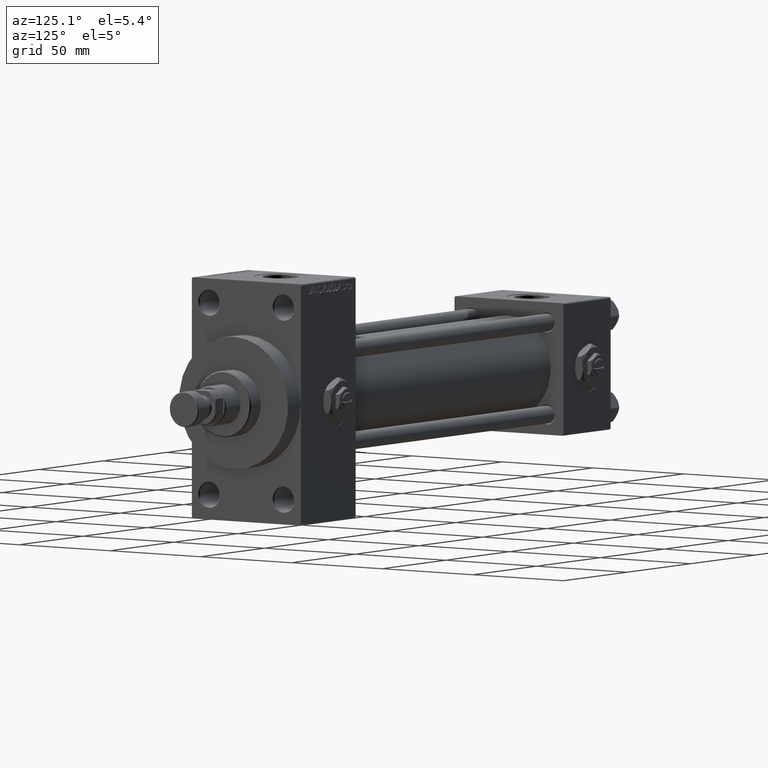
[diagram: clean part render]
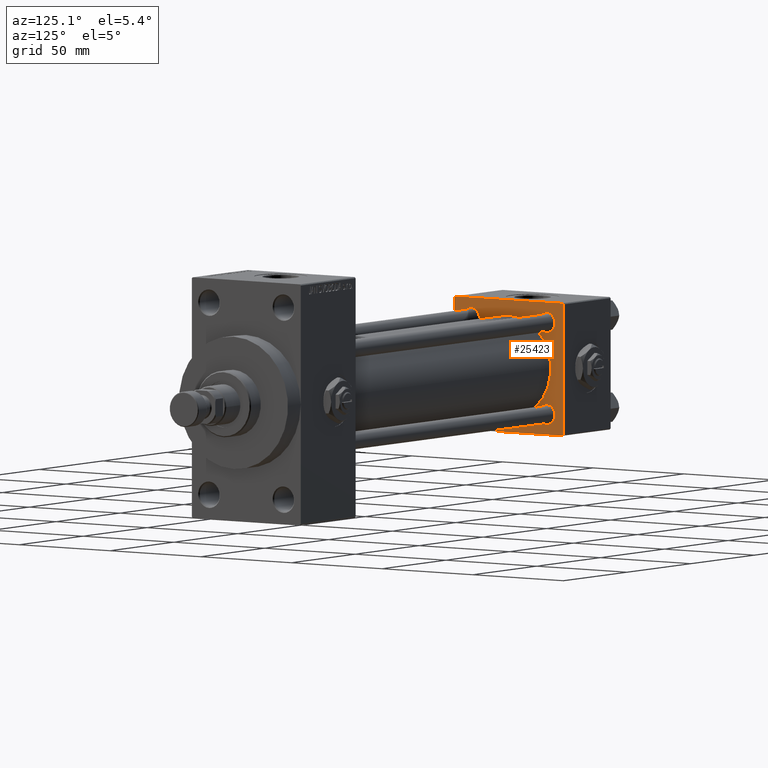
[diagram: same view with one face highlighted and labeled with its STEP entity id]
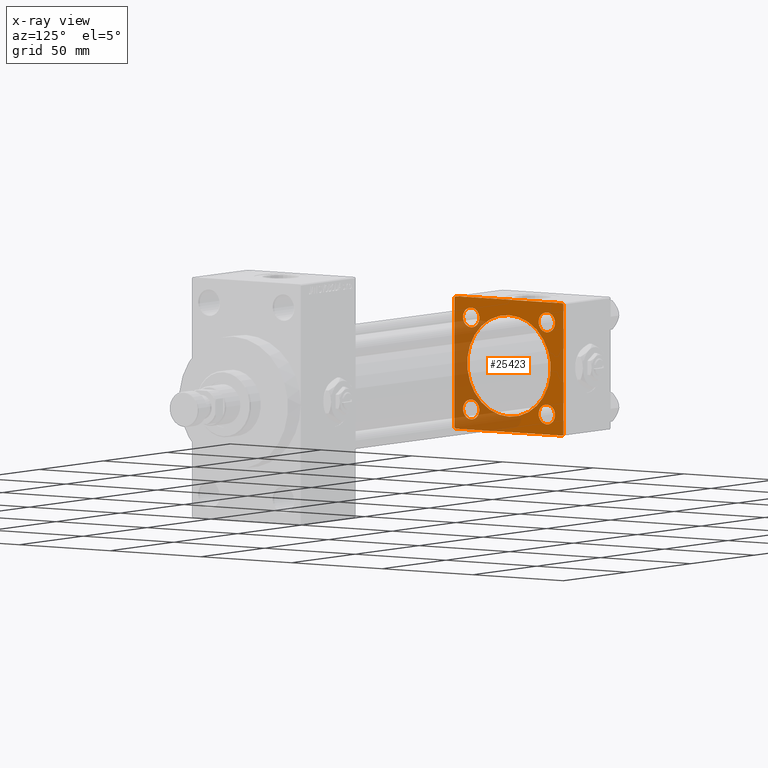
[diagram: x-ray of the same camera — body ghosted, the highlighted face saturated]
A machine part, auxiliary view. The second image highlights one B-rep face of the part: STEP entity #25423.
The next image is the same camera in x-ray: the body ghosted, the highlighted face saturated — about 37% of this face is hidden behind the body in this view.
In plain terms, the highlighted planar face has unit normal (-1, 0, 0).
Its self-contained STEP definition (entity closure, byte-faithful):
#312 = LINE ( 'NONE', #4067, #33620 ) ;
#335 = AXIS2_PLACEMENT_3D ( 'NONE', #7024, #22593, #18570 ) ;
#573 = AXIS2_PLACEMENT_3D ( 'NONE', #35273, #12384, #42820 ) ;
#740 = ORIENTED_EDGE ( 'NONE', *, *, #14645, .F. ) ;
#1093 = CARTESIAN_POINT ( 'NONE',  ( 37.00000000000000000, 20.84999999999999787, 20.85000000000000142 ) ) ;
#1494 = CIRCLE ( 'NONE', #31194, 4.500000000000031974 ) ;
#1702 = CARTESIAN_POINT ( 'NONE',  ( 37.00000000000000000, -20.84999999999999076, 20.85000000000000497 ) ) ;
#2065 = VERTEX_POINT ( 'NONE', #47737 ) ;
#2209 = CARTESIAN_POINT ( 'NONE',  ( 37.00000000000000000, 29.49999999999997868, -30.00000000000000000 ) ) ;
#2310 = FACE_BOUND ( 'NONE', #42715, .T. ) ;
#2791 = FACE_BOUND ( 'NONE', #14196, .T. ) ;
#3025 = VERTEX_POINT ( 'NONE', #27086 ) ;
#3217 = VERTEX_POINT ( 'NONE', #8478 ) ;
#3306 = CARTESIAN_POINT ( 'NONE',  ( 37.00000000000000000, 20.84999999999999787, 16.34999999999996945 ) ) ;
#3775 = AXIS2_PLACEMENT_3D ( 'NONE', #41387, #29817, #22756 ) ;
#4067 = CARTESIAN_POINT ( 'NONE',  ( 37.00000000000000000, 29.99999999999999289, 30.00000000000000000 ) ) ;
#4244 = ORIENTED_EDGE ( 'NONE', *, *, #30381, .T. ) ;
#4370 = VECTOR ( 'NONE', #12376, 1000.000000000000114 ) ;
#4531 = VERTEX_POINT ( 'NONE', #7218 ) ;
#5294 = EDGE_LOOP ( 'NONE', ( #37638, #47723 ) ) ;
#5831 = CARTESIAN_POINT ( 'NONE',  ( 37.00000000000000711, -2.602085213965210642E-15, 0.000000000000000000 ) ) ;
#5833 = FACE_OUTER_BOUND ( 'NONE', #35256, .T. ) ;
#5922 = EDGE_CURVE ( 'NONE', #13702, #3025, #30495, .T. ) ;
#5977 = DIRECTION ( 'NONE',  ( 0.000000000000000000, 0.000000000000000000, 1.000000000000000000 ) ) ;
#6019 = ORIENTED_EDGE ( 'NONE', *, *, #39499, .F. ) ;
#6777 = ORIENTED_EDGE ( 'NONE', *, *, #20550, .T. ) ;
#6865 = CARTESIAN_POINT ( 'NONE',  ( 37.00000000000000000, -30.00000000000000000, 29.49999999999999289 ) ) ;
#7024 = CARTESIAN_POINT ( 'NONE',  ( 37.00000000000000000, 20.84999999999999787, -20.85000000000000142 ) ) ;
#7218 = CARTESIAN_POINT ( 'NONE',  ( 37.00000000000000000, 29.99999999999999289, 29.50000000000000000 ) ) ;
#7369 = EDGE_CURVE ( 'NONE', #9744, #8901, #32244, .T. ) ;
#7399 = AXIS2_PLACEMENT_3D ( 'NONE', #41979, #19578, #23849 ) ;
#7957 = EDGE_CURVE ( 'NONE', #2065, #16080, #8193, .T. ) ;
#8193 = CIRCLE ( 'NONE', #7399, 4.500000000000031974 ) ;
#8389 = VERTEX_POINT ( 'NONE', #9151 ) ;
#8410 = VECTOR ( 'NONE', #33286, 1000.000000000000000 ) ;
#8478 = CARTESIAN_POINT ( 'NONE',  ( 37.00000000000000711, -2.602085213965210642E-15, 23.00000000000000000 ) ) ;
#8794 = DIRECTION ( 'NONE',  ( 0.000000000000000000, 0.000000000000000000, -1.000000000000000000 ) ) ;
#8901 = VERTEX_POINT ( 'NONE', #48808 ) ;
#9151 = CARTESIAN_POINT ( 'NONE',  ( 37.00000000000000000, -20.84999999999999076, 25.35000000000003695 ) ) ;
#9744 = VERTEX_POINT ( 'NONE', #3306 ) ;
#9856 = CIRCLE ( 'NONE', #25884, 23.00000000000000000 ) ;
#10714 = LINE ( 'NONE', #48946, #49469 ) ;
#12356 = AXIS2_PLACEMENT_3D ( 'NONE', #1702, #17044, #5977 ) ;
#12373 = LINE ( 'NONE', #15893, #31885 ) ;
#12376 = DIRECTION ( 'NONE',  ( 0.000000000000000000, -0.7071067811865474617, 0.7071067811865474617 ) ) ;
#12384 = DIRECTION ( 'NONE',  ( -1.000000000000000000, 0.000000000000000000, -0.000000000000000000 ) ) ;
#12808 = AXIS2_PLACEMENT_3D ( 'NONE', #19782, #47208, #23557 ) ;
#13151 = EDGE_LOOP ( 'NONE', ( #6019, #31602 ) ) ;
#13386 = DIRECTION ( 'NONE',  ( -0.000000000000000000, 0.000000000000000000, 1.000000000000000000 ) ) ;
#13702 = VERTEX_POINT ( 'NONE', #21873 ) ;
#14196 = EDGE_LOOP ( 'NONE', ( #44299, #39083 ) ) ;
#14212 = EDGE_CURVE ( 'NONE', #3025, #36210, #29754, .T. ) ;
#14363 = EDGE_CURVE ( 'NONE', #4531, #15976, #16138, .T. ) ;
#14624 = ORIENTED_EDGE ( 'NONE', *, *, #14212, .T. ) ;
#14645 = EDGE_CURVE ( 'NONE', #4531, #47947, #19847, .T. ) ;
#14980 = DIRECTION ( 'NONE',  ( -0.000000000000000000, 0.7071067811865574537, 0.7071067811865376918 ) ) ;
#15396 = DIRECTION ( 'NONE',  ( 0.000000000000000000, -1.000000000000000000, -1.156482317317871725E-16 ) ) ;
#15893 = CARTESIAN_POINT ( 'NONE',  ( 37.00000000000000000, 29.99999999999999289, -30.00000000000000000 ) ) ;
#15976 = VERTEX_POINT ( 'NONE', #39246 ) ;
#16032 = CIRCLE ( 'NONE', #12808, 4.500000000000031974 ) ;
#16080 = VERTEX_POINT ( 'NONE', #35971 ) ;
#16138 = LINE ( 'NONE', #16889, #4370 ) ;
#16428 = DIRECTION ( 'NONE',  ( -1.000000000000000000, 0.000000000000000000, -0.000000000000000000 ) ) ;
#16688 = CARTESIAN_POINT ( 'NONE',  ( 37.00000000000000000, -20.84999999999999076, 16.34999999999997300 ) ) ;
#16889 = CARTESIAN_POINT ( 'NONE',  ( 37.00000000000000000, 29.49999999999999289, 30.00000000000000000 ) ) ;
#16982 = AXIS2_PLACEMENT_3D ( 'NONE', #1093, #16428, #27507 ) ;
#17044 = DIRECTION ( 'NONE',  ( -1.000000000000000000, 0.000000000000000000, -0.000000000000000000 ) ) ;
#17336 = VERTEX_POINT ( 'NONE', #2209 ) ;
#17890 = VECTOR ( 'NONE', #37044, 1000.000000000000114 ) ;
#18134 = CARTESIAN_POINT ( 'NONE',  ( 37.00000000000000000, 0.000000000000000000, 0.000000000000000000 ) ) ;
#18557 = VERTEX_POINT ( 'NONE', #16688 ) ;
#18570 = DIRECTION ( 'NONE',  ( 0.000000000000000000, 0.000000000000000000, 1.000000000000000000 ) ) ;
#19120 = CARTESIAN_POINT ( 'NONE',  ( 37.00000000000000711, 2.146024240737016609E-16, -23.00000000000000000 ) ) ;
#19578 = DIRECTION ( 'NONE',  ( -1.000000000000000000, 0.000000000000000000, -0.000000000000000000 ) ) ;
#19782 = CARTESIAN_POINT ( 'NONE',  ( 37.00000000000000000, 20.84999999999999787, 20.85000000000000142 ) ) ;
#19794 = CARTESIAN_POINT ( 'NONE',  ( 37.00000000000000000, 29.99999999999999289, -29.50000000000000000 ) ) ;
#19847 = LINE ( 'NONE', #39714, #37293 ) ;
#20550 = EDGE_CURVE ( 'NONE', #17336, #47947, #10714, .T. ) ;
#20916 = DIRECTION ( 'NONE',  ( 0.000000000000000000, 0.000000000000000000, 1.000000000000000000 ) ) ;
#21527 = CARTESIAN_POINT ( 'NONE',  ( 37.00000000000000000, -20.84999999999999076, -20.85000000000000497 ) ) ;
#21873 = CARTESIAN_POINT ( 'NONE',  ( 37.00000000000000000, -29.49999999999998579, 29.99999999999999289 ) ) ;
#22148 = DIRECTION ( 'NONE',  ( -1.000000000000000000, 0.000000000000000000, -0.000000000000000000 ) ) ;
#22162 = VERTEX_POINT ( 'NONE', #32658 ) ;
#22593 = DIRECTION ( 'NONE',  ( -1.000000000000000000, 0.000000000000000000, -0.000000000000000000 ) ) ;
#22756 = DIRECTION ( 'NONE',  ( 0.000000000000000000, 0.000000000000000000, 1.000000000000000000 ) ) ;
#22986 = EDGE_CURVE ( 'NONE', #17336, #22162, #12373, .T. ) ;
#23374 = EDGE_CURVE ( 'NONE', #37236, #31915, #49569, .T. ) ;
#23557 = DIRECTION ( 'NONE',  ( 0.000000000000000000, 0.000000000000000000, 1.000000000000000000 ) ) ;
#23581 = CIRCLE ( 'NONE', #12356, 4.500000000000031974 ) ;
#23787 = EDGE_CURVE ( 'NONE', #8389, #18557, #48787, .T. ) ;
#23849 = DIRECTION ( 'NONE',  ( 0.000000000000000000, 0.000000000000000000, 1.000000000000000000 ) ) ;
#25423 = ADVANCED_FACE ( 'NONE', ( #2791, #2310, #29464, #44069, #40291, #5833 ), #48833, .F. ) ;
#25702 = DIRECTION ( 'NONE',  ( 1.000000000000000000, -0.000000000000000000, 0.000000000000000000 ) ) ;
#25884 = AXIS2_PLACEMENT_3D ( 'NONE', #5831, #40044, #20916 ) ;
#26361 = VERTEX_POINT ( 'NONE', #19120 ) ;
#26720 = AXIS2_PLACEMENT_3D ( 'NONE', #45556, #25702, #33745 ) ;
#27086 = CARTESIAN_POINT ( 'NONE',  ( 37.00000000000000000, -30.00000000000000000, 29.49999999999999289 ) ) ;
#27507 = DIRECTION ( 'NONE',  ( 0.000000000000000000, 0.000000000000000000, 1.000000000000000000 ) ) ;
#28096 = EDGE_CURVE ( 'NONE', #8901, #9744, #16032, .T. ) ;
#28244 = CARTESIAN_POINT ( 'NONE',  ( 37.00000000000000000, -30.00000000000000000, -29.50000000000001776 ) ) ;
#28345 = CIRCLE ( 'NONE', #26720, 23.00000000000000000 ) ;
#28712 = CARTESIAN_POINT ( 'NONE',  ( 37.00000000000000000, -29.50000000000001066, -30.00000000000000711 ) ) ;
#28839 = DIRECTION ( 'NONE',  ( -1.000000000000000000, 0.000000000000000000, -0.000000000000000000 ) ) ;
#29133 = EDGE_CURVE ( 'NONE', #16080, #2065, #1494, .T. ) ;
#29464 = FACE_BOUND ( 'NONE', #5294, .T. ) ;
#29754 = LINE ( 'NONE', #45091, #8410 ) ;
#29817 = DIRECTION ( 'NONE',  ( -1.000000000000000000, 0.000000000000000000, -0.000000000000000000 ) ) ;
#30381 = EDGE_CURVE ( 'NONE', #15976, #13702, #312, .T. ) ;
#30495 = LINE ( 'NONE', #6865, #17890 ) ;
#30836 = ORIENTED_EDGE ( 'NONE', *, *, #31639, .T. ) ;
#31194 = AXIS2_PLACEMENT_3D ( 'NONE', #21527, #28839, #41394 ) ;
#31602 = ORIENTED_EDGE ( 'NONE', *, *, #36289, .F. ) ;
#31639 = EDGE_CURVE ( 'NONE', #36210, #22162, #37237, .T. ) ;
#31885 = VECTOR ( 'NONE', #34520, 1000.000000000000000 ) ;
#31915 = VERTEX_POINT ( 'NONE', #41459 ) ;
#32244 = CIRCLE ( 'NONE', #16982, 4.500000000000031974 ) ;
#32645 = ORIENTED_EDGE ( 'NONE', *, *, #22986, .F. ) ;
#32658 = CARTESIAN_POINT ( 'NONE',  ( 37.00000000000000000, -29.50000000000000000, -30.00000000000000711 ) ) ;
#32949 = ORIENTED_EDGE ( 'NONE', *, *, #7369, .T. ) ;
#33254 = ORIENTED_EDGE ( 'NONE', *, *, #28096, .T. ) ;
#33286 = DIRECTION ( 'NONE',  ( 0.000000000000000000, 0.000000000000000000, -1.000000000000000000 ) ) ;
#33501 = ORIENTED_EDGE ( 'NONE', *, *, #14363, .T. ) ;
#33620 = VECTOR ( 'NONE', #15396, 1000.000000000000000 ) ;
#33745 = DIRECTION ( 'NONE',  ( 0.000000000000000000, 0.000000000000000000, 1.000000000000000000 ) ) ;
#33751 = CARTESIAN_POINT ( 'NONE',  ( 37.00000000000000000, 20.84999999999999787, -16.34999999999996945 ) ) ;
#34385 = AXIS2_PLACEMENT_3D ( 'NONE', #18134, #22148, #13386 ) ;
#34520 = DIRECTION ( 'NONE',  ( 0.000000000000000000, -1.000000000000000000, -1.156482317317871725E-16 ) ) ;
#35256 = EDGE_LOOP ( 'NONE', ( #32645, #6777, #740, #33501, #4244, #41787, #14624, #30836 ) ) ;
#35273 = CARTESIAN_POINT ( 'NONE',  ( 37.00000000000000000, -20.84999999999999076, 20.85000000000000497 ) ) ;
#35971 = CARTESIAN_POINT ( 'NONE',  ( 37.00000000000000000, -20.84999999999999076, -16.34999999999997300 ) ) ;
#36210 = VERTEX_POINT ( 'NONE', #28244 ) ;
#36289 = EDGE_CURVE ( 'NONE', #26361, #3217, #28345, .T. ) ;
#36896 = VECTOR ( 'NONE', #48084, 1000.000000000000114 ) ;
#37044 = DIRECTION ( 'NONE',  ( -0.000000000000000000, -0.7071067811865474617, -0.7071067811865474617 ) ) ;
#37236 = VERTEX_POINT ( 'NONE', #33751 ) ;
#37237 = LINE ( 'NONE', #28712, #36896 ) ;
#37293 = VECTOR ( 'NONE', #8794, 1000.000000000000000 ) ;
#37638 = ORIENTED_EDGE ( 'NONE', *, *, #42301, .T. ) ;
#39033 = EDGE_LOOP ( 'NONE', ( #32949, #33254 ) ) ;
#39083 = ORIENTED_EDGE ( 'NONE', *, *, #29133, .T. ) ;
#39246 = CARTESIAN_POINT ( 'NONE',  ( 37.00000000000000000, 29.49999999999999289, 30.00000000000000000 ) ) ;
#39499 = EDGE_CURVE ( 'NONE', #3217, #26361, #9856, .T. ) ;
#39714 = CARTESIAN_POINT ( 'NONE',  ( 37.00000000000000000, 29.99999999999999289, 30.00000000000000000 ) ) ;
#39964 = ORIENTED_EDGE ( 'NONE', *, *, #23374, .T. ) ;
#40044 = DIRECTION ( 'NONE',  ( 1.000000000000000000, -0.000000000000000000, 0.000000000000000000 ) ) ;
#40291 = FACE_BOUND ( 'NONE', #13151, .T. ) ;
#41387 = CARTESIAN_POINT ( 'NONE',  ( 37.00000000000000000, 20.84999999999999787, -20.85000000000000142 ) ) ;
#41394 = DIRECTION ( 'NONE',  ( 0.000000000000000000, 0.000000000000000000, 1.000000000000000000 ) ) ;
#41459 = CARTESIAN_POINT ( 'NONE',  ( 37.00000000000000000, 20.84999999999999787, -25.35000000000003340 ) ) ;
#41787 = ORIENTED_EDGE ( 'NONE', *, *, #5922, .T. ) ;
#41979 = CARTESIAN_POINT ( 'NONE',  ( 37.00000000000000000, -20.84999999999999076, -20.85000000000000497 ) ) ;
#42077 = EDGE_CURVE ( 'NONE', #31915, #37236, #46898, .T. ) ;
#42301 = EDGE_CURVE ( 'NONE', #18557, #8389, #23581, .T. ) ;
#42715 = EDGE_LOOP ( 'NONE', ( #45122, #39964 ) ) ;
#42820 = DIRECTION ( 'NONE',  ( 0.000000000000000000, 0.000000000000000000, 1.000000000000000000 ) ) ;
#44069 = FACE_BOUND ( 'NONE', #39033, .T. ) ;
#44299 = ORIENTED_EDGE ( 'NONE', *, *, #7957, .T. ) ;
#45091 = CARTESIAN_POINT ( 'NONE',  ( 37.00000000000000000, -30.00000000000000000, 29.99999999999999289 ) ) ;
#45122 = ORIENTED_EDGE ( 'NONE', *, *, #42077, .T. ) ;
#45556 = CARTESIAN_POINT ( 'NONE',  ( 37.00000000000000711, -2.602085213965210642E-15, 0.000000000000000000 ) ) ;
#46898 = CIRCLE ( 'NONE', #335, 4.500000000000031974 ) ;
#47208 = DIRECTION ( 'NONE',  ( -1.000000000000000000, 0.000000000000000000, -0.000000000000000000 ) ) ;
#47723 = ORIENTED_EDGE ( 'NONE', *, *, #23787, .T. ) ;
#47737 = CARTESIAN_POINT ( 'NONE',  ( 37.00000000000000000, -20.84999999999999076, -25.35000000000003695 ) ) ;
#47947 = VERTEX_POINT ( 'NONE', #19794 ) ;
#48084 = DIRECTION ( 'NONE',  ( 0.000000000000000000, 0.7071067811865474617, -0.7071067811865474617 ) ) ;
#48787 = CIRCLE ( 'NONE', #573, 4.500000000000031974 ) ;
#48808 = CARTESIAN_POINT ( 'NONE',  ( 37.00000000000000000, 20.84999999999999787, 25.35000000000003340 ) ) ;
#48833 = PLANE ( 'NONE',  #34385 ) ;
#48946 = CARTESIAN_POINT ( 'NONE',  ( 37.00000000000000000, 29.99999999999999289, -29.50000000000000000 ) ) ;
#49469 = VECTOR ( 'NONE', #14980, 999.9999999999998863 ) ;
#49569 = CIRCLE ( 'NONE', #3775, 4.500000000000031974 ) ;